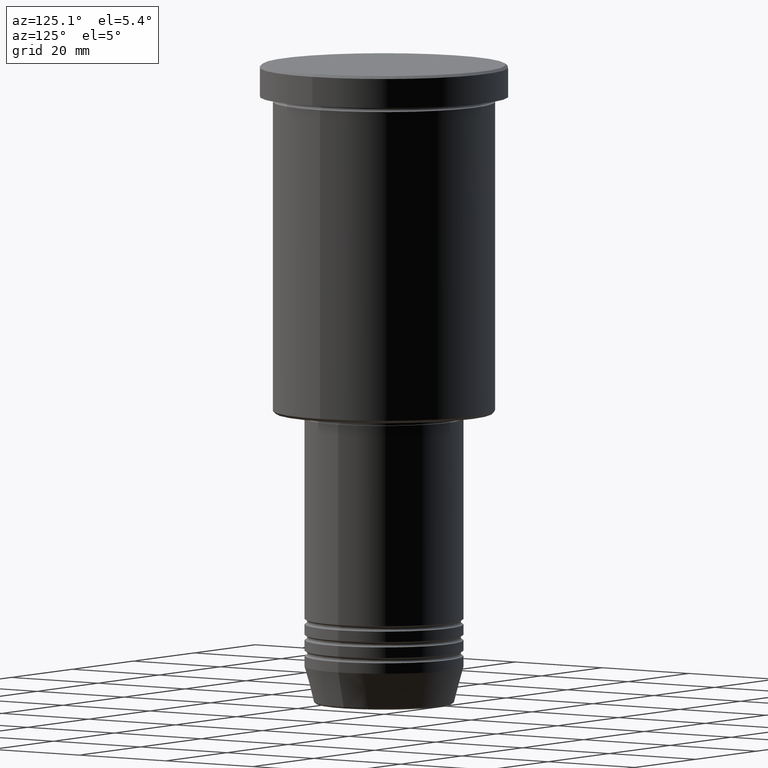
[diagram: clean part render]
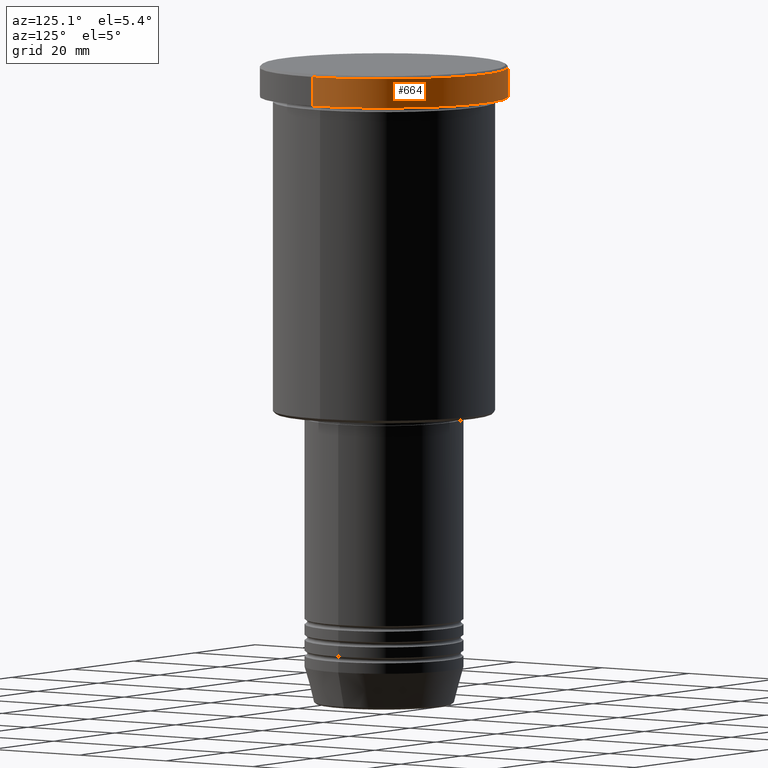
[diagram: same view with one face highlighted and labeled with its STEP entity id]
A machine part, auxiliary view. The second image highlights one B-rep face of the part: STEP entity #664.
In plain terms, the highlighted cylindrical surface (partial cylindrical patch) has radius 23.5 mm, axis along (-0, -0, 1).
Its self-contained STEP definition (entity closure, byte-faithful):
#11 = DIRECTION ( 'NONE',  ( -0.000000000000000000, -0.000000000000000000, 1.000000000000000000 ) ) ;
#121 = CARTESIAN_POINT ( 'NONE',  ( -23.50000000000000000, 2.877919977996280320E-15, -5.999999999999994671 ) ) ;
#130 = ORIENTED_EDGE ( 'NONE', *, *, #636, .T. ) ;
#177 = DIRECTION ( 'NONE',  ( 1.000000000000000000, 0.000000000000000000, 0.000000000000000000 ) ) ;
#196 = EDGE_CURVE ( 'NONE', #825, #748, #472, .T. ) ;
#262 = CARTESIAN_POINT ( 'NONE',  ( 23.50000000000000000, 0.000000000000000000, 0.000000000000000000 ) ) ;
#273 = DIRECTION ( 'NONE',  ( 0.000000000000000000, 0.000000000000000000, -1.000000000000000000 ) ) ;
#348 = CARTESIAN_POINT ( 'NONE',  ( 0.000000000000000000, 0.000000000000000000, -5.999999999999994671 ) ) ;
#472 = LINE ( 'NONE', #837, #626 ) ;
#551 = CYLINDRICAL_SURFACE ( 'NONE', #1076, 23.50000000000000000 ) ;
#626 = VECTOR ( 'NONE', #11, 1000.000000000000000 ) ;
#632 = CARTESIAN_POINT ( 'NONE',  ( 0.000000000000000000, 0.000000000000000000, -0.5000000000000143219 ) ) ;
#636 = EDGE_CURVE ( 'NONE', #748, #957, #982, .T. ) ;
#637 = EDGE_LOOP ( 'NONE', ( #1032, #644, #130, #938 ) ) ;
#644 = ORIENTED_EDGE ( 'NONE', *, *, #196, .T. ) ;
#664 = ADVANCED_FACE ( 'NONE', ( #1170 ), #551, .T. ) ;
#690 = CIRCLE ( 'NONE', #928, 23.50000000000000000 ) ;
#717 = DIRECTION ( 'NONE',  ( -0.000000000000000000, -0.000000000000000000, 1.000000000000000000 ) ) ;
#743 = DIRECTION ( 'NONE',  ( 1.000000000000000000, 0.000000000000000000, 0.000000000000000000 ) ) ;
#744 = VECTOR ( 'NONE', #989, 1000.000000000000000 ) ;
#748 = VERTEX_POINT ( 'NONE', #1112 ) ;
#790 = CARTESIAN_POINT ( 'NONE',  ( 23.50000000000000000, 0.000000000000000000, -5.999999999999994671 ) ) ;
#825 = VERTEX_POINT ( 'NONE', #121 ) ;
#837 = CARTESIAN_POINT ( 'NONE',  ( -23.50000000000000000, 2.877919977996280320E-15, 0.000000000000000000 ) ) ;
#886 = VERTEX_POINT ( 'NONE', #790 ) ;
#902 = LINE ( 'NONE', #262, #744 ) ;
#903 = CARTESIAN_POINT ( 'NONE',  ( 0.000000000000000000, 0.000000000000000000, 0.000000000000000000 ) ) ;
#910 = DIRECTION ( 'NONE',  ( -0.000000000000000000, -0.000000000000000000, 1.000000000000000000 ) ) ;
#928 = AXIS2_PLACEMENT_3D ( 'NONE', #348, #717, #1071 ) ;
#938 = ORIENTED_EDGE ( 'NONE', *, *, #1031, .F. ) ;
#957 = VERTEX_POINT ( 'NONE', #1044 ) ;
#982 = CIRCLE ( 'NONE', #1109, 23.50000000000000000 ) ;
#989 = DIRECTION ( 'NONE',  ( -0.000000000000000000, -0.000000000000000000, 1.000000000000000000 ) ) ;
#1031 = EDGE_CURVE ( 'NONE', #886, #957, #902, .T. ) ;
#1032 = ORIENTED_EDGE ( 'NONE', *, *, #1102, .T. ) ;
#1044 = CARTESIAN_POINT ( 'NONE',  ( 23.50000000000000000, 0.000000000000000000, -0.5000000000000143219 ) ) ;
#1071 = DIRECTION ( 'NONE',  ( 1.000000000000000000, 0.000000000000000000, 0.000000000000000000 ) ) ;
#1076 = AXIS2_PLACEMENT_3D ( 'NONE', #903, #910, #177 ) ;
#1102 = EDGE_CURVE ( 'NONE', #886, #825, #690, .T. ) ;
#1109 = AXIS2_PLACEMENT_3D ( 'NONE', #632, #273, #743 ) ;
#1112 = CARTESIAN_POINT ( 'NONE',  ( -23.50000000000000000, 2.877919977996280320E-15, -0.5000000000000143219 ) ) ;
#1170 = FACE_OUTER_BOUND ( 'NONE', #637, .T. ) ;